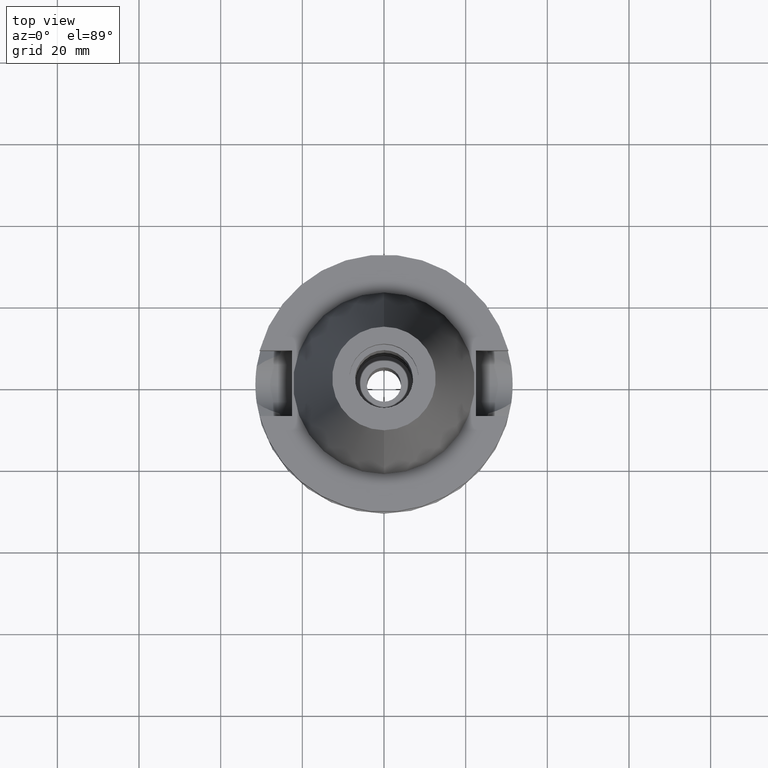
[diagram: clean part render]
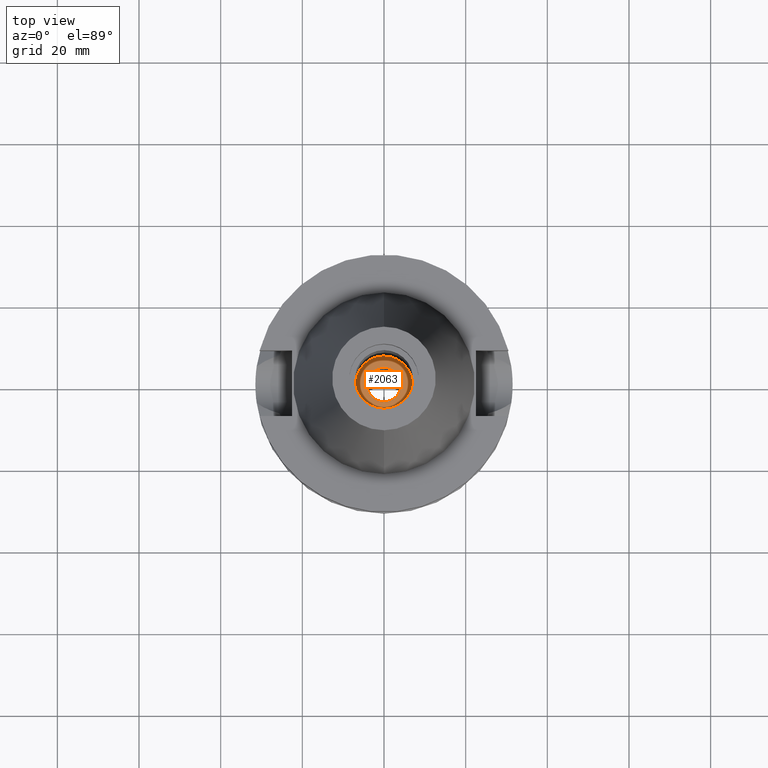
[diagram: same view with one face highlighted and labeled with its STEP entity id]
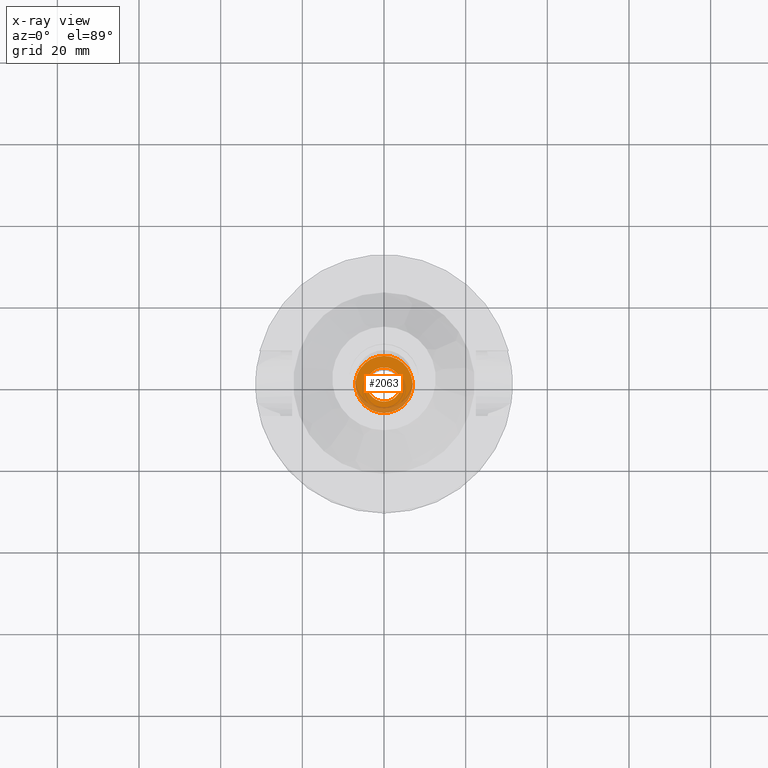
[diagram: x-ray of the same camera — body ghosted, the highlighted face saturated]
A machine part, top view. The second image highlights one B-rep face of the part: STEP entity #2063.
The next image is the same camera in x-ray: the body ghosted, the highlighted face saturated — about 17% of this face is hidden behind the body in this view.
In plain terms, the highlighted planar face has unit normal (0, 0, -1).
Its self-contained STEP definition (entity closure, byte-faithful):
#155 = EDGE_LOOP ( 'NONE', ( #3060, #2921 ) ) ;
#157 = EDGE_CURVE ( 'NONE', #2891, #212, #2773, .T. ) ;
#165 = VERTEX_POINT ( 'NONE', #188 ) ;
#174 = FACE_OUTER_BOUND ( 'NONE', #155, .T. ) ;
#188 = CARTESIAN_POINT ( 'NONE',  ( 0.0000000000000000000, -7.000000000000000000, -19.59999999999999787 ) ) ;
#204 = DIRECTION ( 'NONE',  ( 0.0000000000000000000, 1.000000000000000000, 0.0000000000000000000 ) ) ;
#212 = VERTEX_POINT ( 'NONE', #1901 ) ;
#267 = AXIS2_PLACEMENT_3D ( 'NONE', #824, #1989, #1791 ) ;
#299 = DIRECTION ( 'NONE',  ( 0.0000000000000000000, 0.0000000000000000000, -1.000000000000000000 ) ) ;
#448 = FACE_BOUND ( 'NONE', #2537, .T. ) ;
#462 = VERTEX_POINT ( 'NONE', #587 ) ;
#482 = DIRECTION ( 'NONE',  ( 0.0000000000000000000, -1.000000000000000000, 0.0000000000000000000 ) ) ;
#499 = CARTESIAN_POINT ( 'NONE',  ( 0.0000000000000000000, 0.0000000000000000000, -19.59999999999999787 ) ) ;
#587 = CARTESIAN_POINT ( 'NONE',  ( 0.0000000000000000000, 7.000000000000000000, -19.59999999999999787 ) ) ;
#724 = CARTESIAN_POINT ( 'NONE',  ( 0.0000000000000000000, 0.0000000000000000000, -19.59999999999999787 ) ) ;
#824 = CARTESIAN_POINT ( 'NONE',  ( 0.0000000000000000000, 0.0000000000000000000, -19.59999999999999787 ) ) ;
#877 = CIRCLE ( 'NONE', #267, 7.000000000000000000 ) ;
#940 = DIRECTION ( 'NONE',  ( 0.0000000000000000000, 0.0000000000000000000, 1.000000000000000000 ) ) ;
#958 = DIRECTION ( 'NONE',  ( 0.0000000000000000000, -1.000000000000000000, 0.0000000000000000000 ) ) ;
#978 = DIRECTION ( 'NONE',  ( 0.0000000000000000000, 1.000000000000000000, 0.0000000000000000000 ) ) ;
#1210 = AXIS2_PLACEMENT_3D ( 'NONE', #2402, #2831, #482 ) ;
#1219 = AXIS2_PLACEMENT_3D ( 'NONE', #724, #299, #978 ) ;
#1374 = EDGE_CURVE ( 'NONE', #462, #165, #2574, .T. ) ;
#1791 = DIRECTION ( 'NONE',  ( 0.0000000000000000000, -1.000000000000000000, 0.0000000000000000000 ) ) ;
#1878 = ORIENTED_EDGE ( 'NONE', *, *, #2163, .F. ) ;
#1901 = CARTESIAN_POINT ( 'NONE',  ( 0.0000000000000000000, -4.200000000000000178, -19.59999999999999787 ) ) ;
#1989 = DIRECTION ( 'NONE',  ( 0.0000000000000000000, 0.0000000000000000000, -1.000000000000000000 ) ) ;
#2062 = AXIS2_PLACEMENT_3D ( 'NONE', #499, #940, #958 ) ;
#2063 = ADVANCED_FACE ( 'NONE', ( #174, #448 ), #2846, .F. ) ;
#2120 = DIRECTION ( 'NONE',  ( 0.0000000000000000000, 0.0000000000000000000, 1.000000000000000000 ) ) ;
#2163 = EDGE_CURVE ( 'NONE', #212, #2891, #2465, .T. ) ;
#2167 = AXIS2_PLACEMENT_3D ( 'NONE', #2170, #2120, #204 ) ;
#2170 = CARTESIAN_POINT ( 'NONE',  ( 0.0000000000000000000, 0.0000000000000000000, -19.59999999999999787 ) ) ;
#2350 = ORIENTED_EDGE ( 'NONE', *, *, #157, .F. ) ;
#2402 = CARTESIAN_POINT ( 'NONE',  ( 0.0000000000000000000, 0.0000000000000000000, -19.59999999999999787 ) ) ;
#2438 = CARTESIAN_POINT ( 'NONE',  ( 0.0000000000000000000, 4.200000000000000178, -19.59999999999999787 ) ) ;
#2465 = CIRCLE ( 'NONE', #2062, 4.200000000000000178 ) ;
#2537 = EDGE_LOOP ( 'NONE', ( #2350, #1878 ) ) ;
#2574 = CIRCLE ( 'NONE', #1219, 7.000000000000000000 ) ;
#2773 = CIRCLE ( 'NONE', #2167, 4.200000000000000178 ) ;
#2831 = DIRECTION ( 'NONE',  ( 0.0000000000000000000, 0.0000000000000000000, -1.000000000000000000 ) ) ;
#2846 = PLANE ( 'NONE',  #1210 ) ;
#2891 = VERTEX_POINT ( 'NONE', #2438 ) ;
#2921 = ORIENTED_EDGE ( 'NONE', *, *, #3061, .F. ) ;
#3060 = ORIENTED_EDGE ( 'NONE', *, *, #1374, .F. ) ;
#3061 = EDGE_CURVE ( 'NONE', #165, #462, #877, .T. ) ;